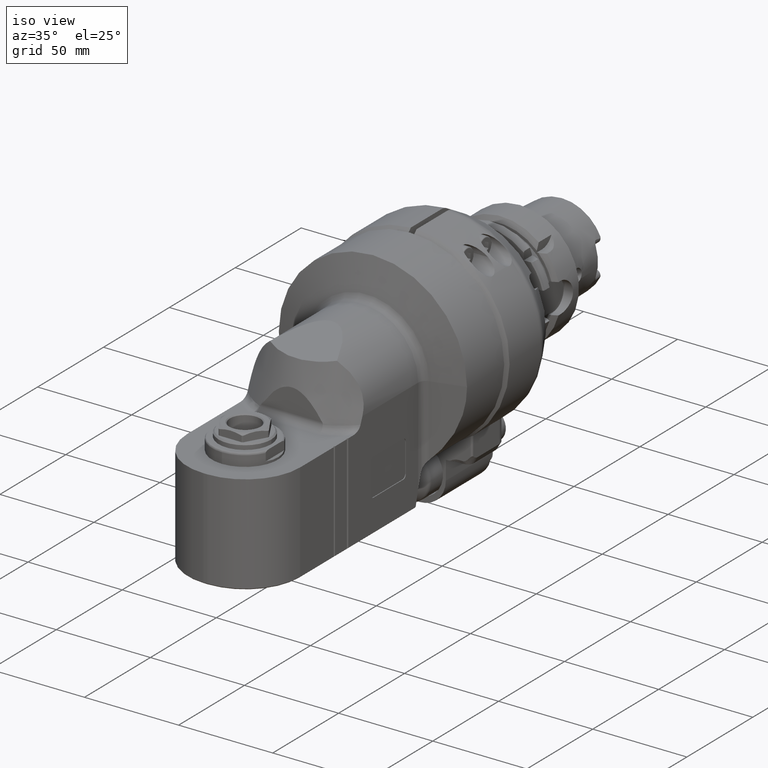
[diagram: clean part render]
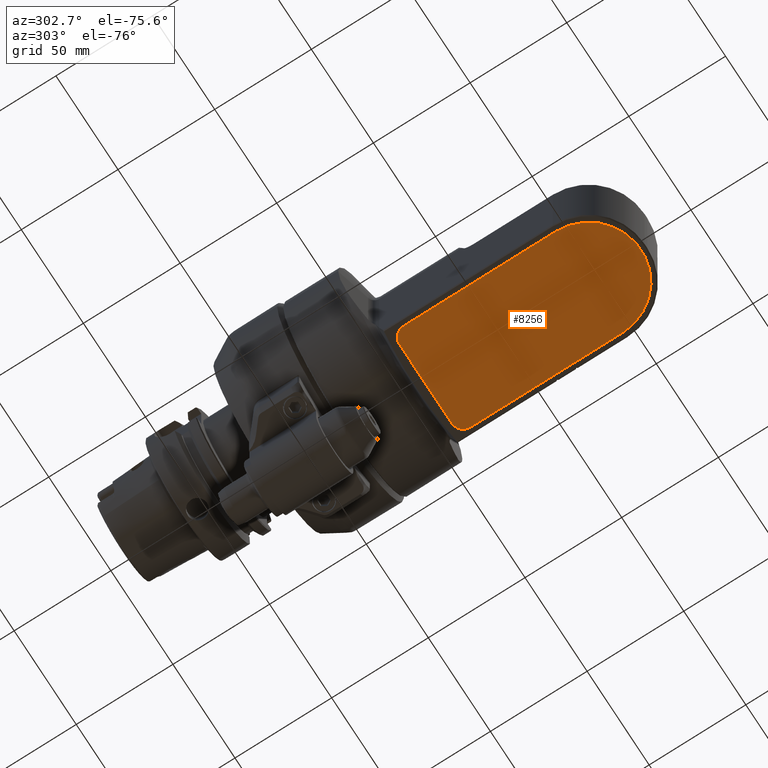
[diagram: tour spotlight — one face highlighted and labeled with its STEP entity id]
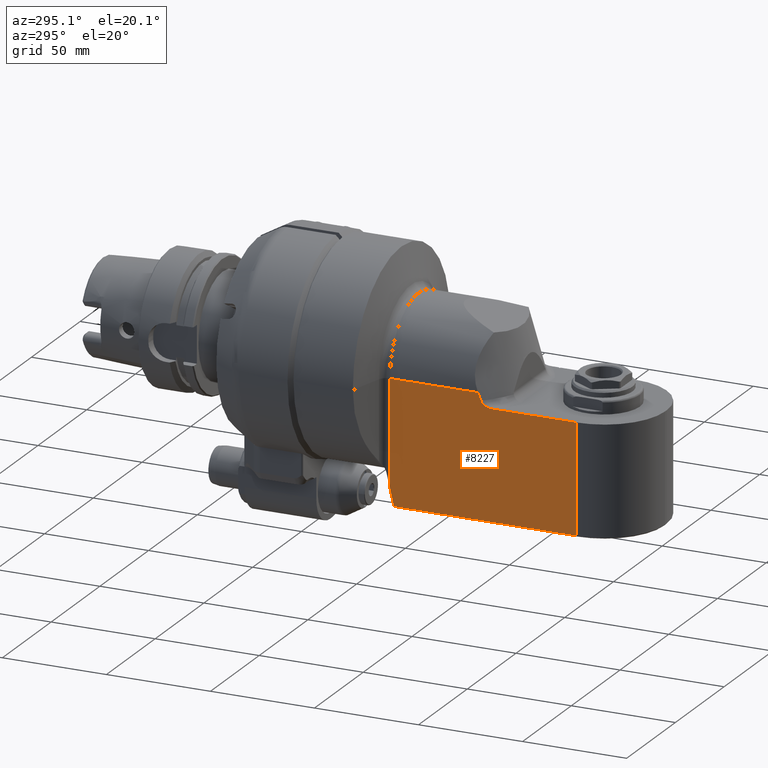
[diagram: tour spotlight — one face highlighted and labeled with its STEP entity id]
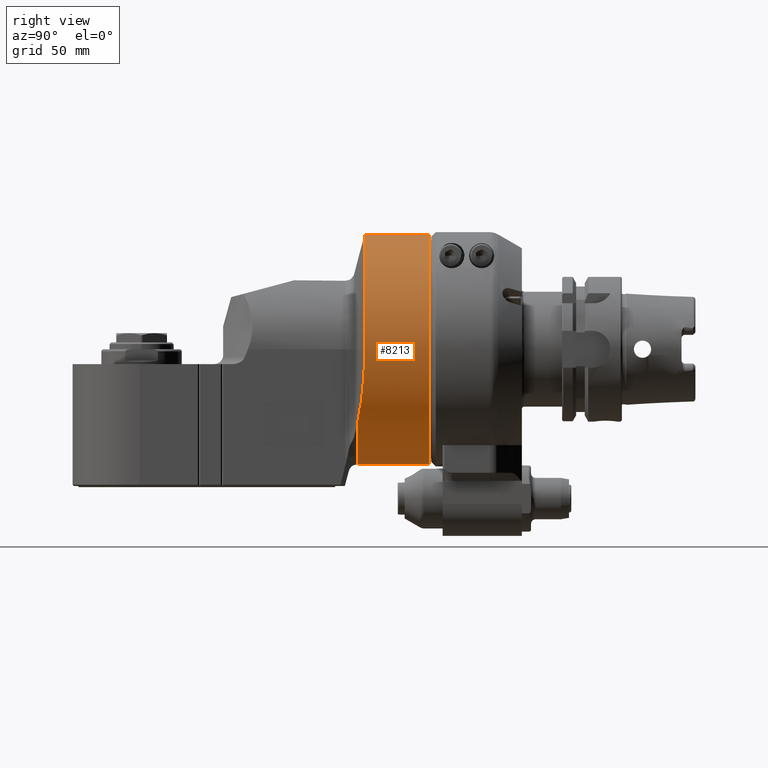
[diagram: tour spotlight — one face highlighted and labeled with its STEP entity id]
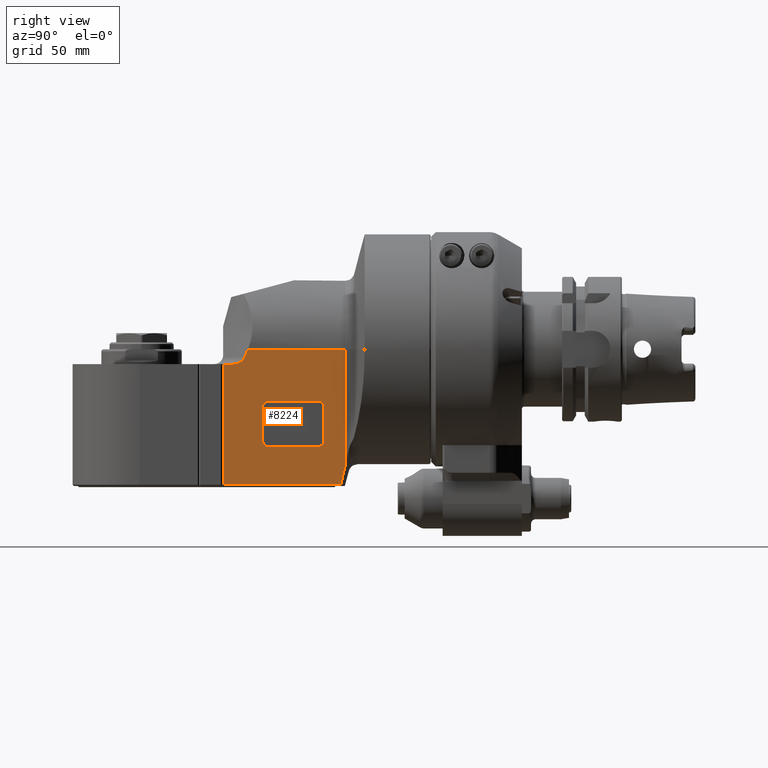
[diagram: tour spotlight — one face highlighted and labeled with its STEP entity id]
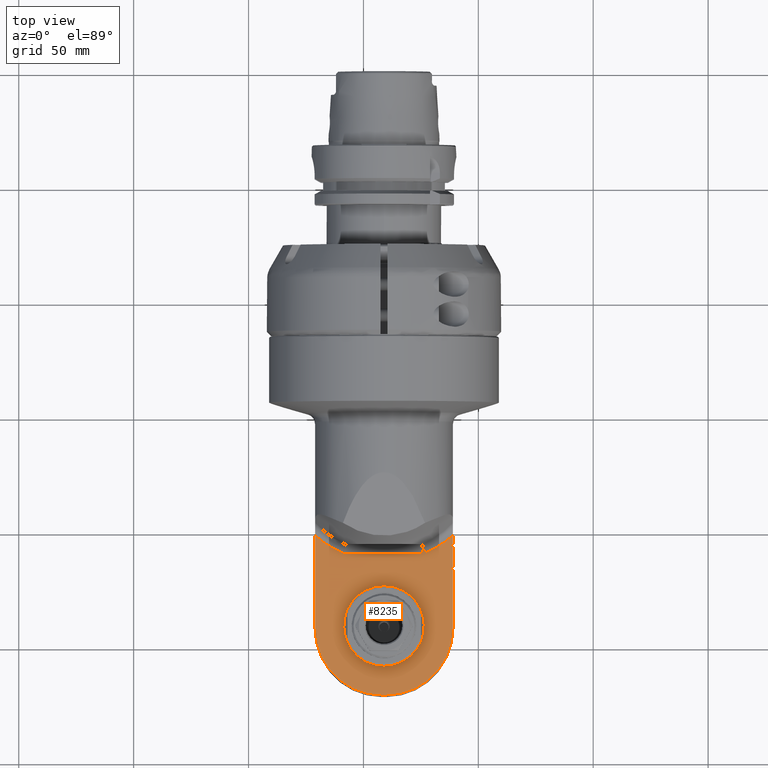
[diagram: tour spotlight — one face highlighted and labeled with its STEP entity id]
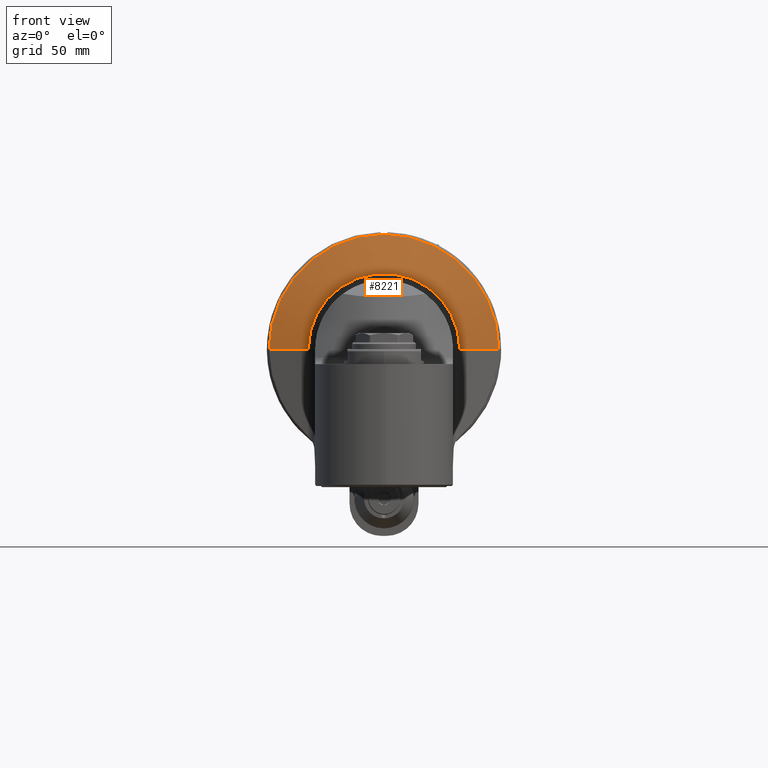
[diagram: tour spotlight — one face highlighted and labeled with its STEP entity id]
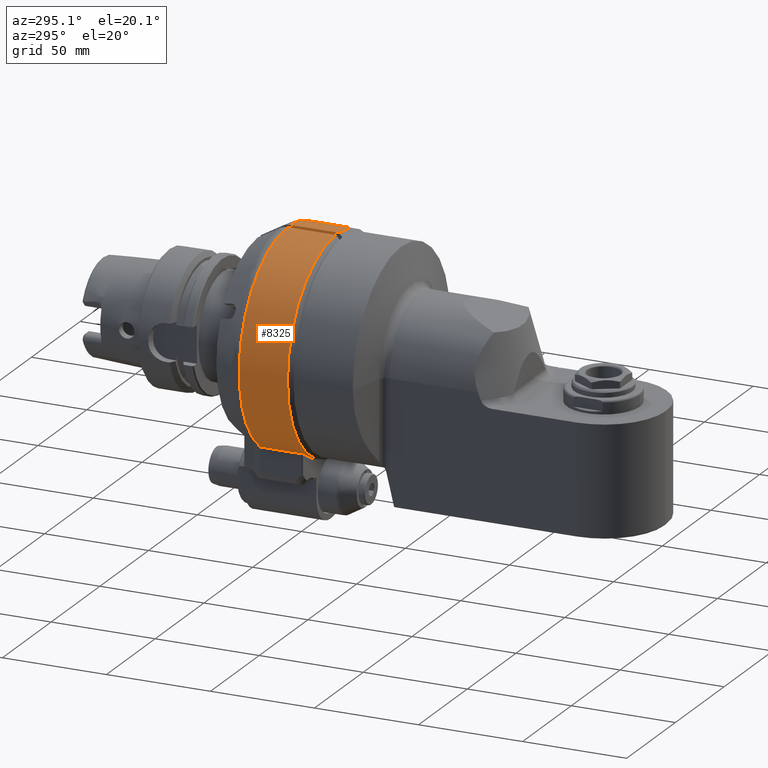
[diagram: tour spotlight — one face highlighted and labeled with its STEP entity id]
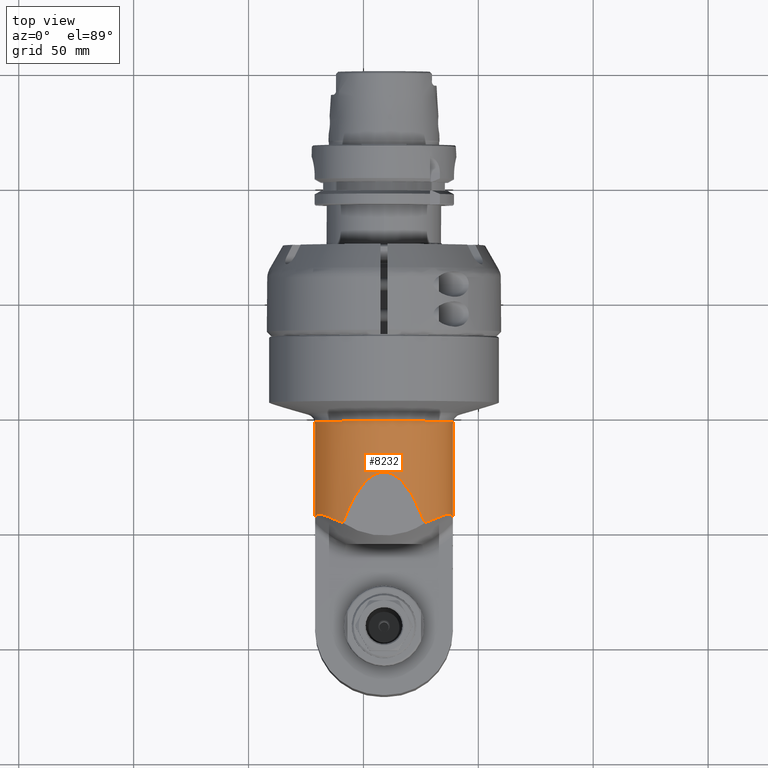
[diagram: tour spotlight — one face highlighted and labeled with its STEP entity id]
A machine part: a face-by-face anatomy tour. The part has 488 B-rep faces; the first image is the clean iso view, then the 8 largest visible faces are spotlighted one at a time (largest first), each with its STEP entity span.

Face 1 — auxiliary view, entity #8256. In plain terms, the highlighted planar face has unit normal (0, -0, 1).
Definition (entity closure, byte-faithful):
#415=PLANE('',#8845);
#771=FACE_OUTER_BOUND('',#1264,.T.);
#1264=EDGE_LOOP('',(#5746,#5747,#5748,#5749,#5750,#5751));
#1825=LINE('',#12572,#2392);
#1826=LINE('',#12575,#2393);
#1827=LINE('',#12576,#2394);
#2392=VECTOR('',#9946,78.5);
#2393=VECTOR('',#9949,78.5);
#2394=VECTOR('',#9950,42.);
#2951=CIRCLE('',#8844,6.);
#2952=CIRCLE('',#8846,6.);
#2953=CIRCLE('',#8847,27.);
#3443=VERTEX_POINT('',#12562);
#3444=VERTEX_POINT('',#12563);
#3445=VERTEX_POINT('',#12568);
#3446=VERTEX_POINT('',#12569);
#3447=VERTEX_POINT('',#12571);
#3448=VERTEX_POINT('',#12573);
#4343=EDGE_CURVE('',#3443,#3444,#2951,.T.);
#4346=EDGE_CURVE('',#3445,#3446,#2952,.T.);
#4347=EDGE_CURVE('',#3446,#3447,#1825,.T.);
#4348=EDGE_CURVE('',#3447,#3448,#2953,.T.);
#4349=EDGE_CURVE('',#3448,#3443,#1826,.T.);
#4350=EDGE_CURVE('',#3444,#3445,#1827,.T.);
#5746=ORIENTED_EDGE('',*,*,#4346,.T.);
#5747=ORIENTED_EDGE('',*,*,#4347,.T.);
#5748=ORIENTED_EDGE('',*,*,#4348,.T.);
#5749=ORIENTED_EDGE('',*,*,#4349,.T.);
#5750=ORIENTED_EDGE('',*,*,#4343,.T.);
#5751=ORIENTED_EDGE('',*,*,#4350,.T.);
#8256=ADVANCED_FACE('',(#771),#415,.F.);
#8844=AXIS2_PLACEMENT_3D('',#12564,#9938,#9939);
#8845=AXIS2_PLACEMENT_3D('',#12567,#9942,#9943);
#8846=AXIS2_PLACEMENT_3D('',#12570,#9944,#9945);
#8847=AXIS2_PLACEMENT_3D('',#12574,#9947,#9948);
#9938=DIRECTION('center_axis',(0.,1.,0.));
#9939=DIRECTION('ref_axis',(1.657933050107E-14,0.,-1.));
#9942=DIRECTION('center_axis',(0.,-1.,0.));
#9943=DIRECTION('ref_axis',(1.,0.,0.));
#9944=DIRECTION('center_axis',(0.,1.,0.));
#9945=DIRECTION('ref_axis',(-1.,0.,0.));
#9946=DIRECTION('',(1.,0.,0.));
#9947=DIRECTION('center_axis',(0.,1.,0.));
#9948=DIRECTION('ref_axis',(0.,0.,1.));
#9949=DIRECTION('',(-1.,0.,0.));
#9950=DIRECTION('',(0.,0.,1.));
#12562=CARTESIAN_POINT('',(52.,60.,-27.));
#12563=CARTESIAN_POINT('',(46.,60.,-21.));
#12564=CARTESIAN_POINT('Origin',(52.,60.,-21.));
#12567=CARTESIAN_POINT('Origin',(109.465346024,60.,0.));
#12568=CARTESIAN_POINT('',(46.,60.,21.));
#12569=CARTESIAN_POINT('',(52.,60.,27.));
#12570=CARTESIAN_POINT('Origin',(52.,60.,21.));
#12571=CARTESIAN_POINT('',(130.5,60.,27.));
#12572=CARTESIAN_POINT('',(52.,60.,27.));
#12573=CARTESIAN_POINT('',(130.5,60.,-27.));
#12574=CARTESIAN_POINT('Origin',(130.5,60.,0.));
#12575=CARTESIAN_POINT('',(130.5,60.,-27.));
#12576=CARTESIAN_POINT('',(46.,60.,-21.));

Face 2 — auxiliary view, entity #8227. In plain terms, the highlighted planar face has unit normal (-1, -0, 0).
Definition (entity closure, byte-faithful):
#42=(
BOUNDED_CURVE()
B_SPLINE_CURVE(2,(#12303,#12304,#12305),.UNSPECIFIED.,.F.,.F.)
B_SPLINE_CURVE_WITH_KNOTS((3,3),(31.6407018756525,33.7809985928058),
 .UNSPECIFIED.)
CURVE()
GEOMETRIC_REPRESENTATION_ITEM()
RATIONAL_B_SPLINE_CURVE((1.16255857113133,1.13492545272164,1.10281010088752))
REPRESENTATION_ITEM('')
);
#45=(
BOUNDED_CURVE()
B_SPLINE_CURVE(2,(#12349,#12350,#12351),.UNSPECIFIED.,.F.,.F.)
B_SPLINE_CURVE_WITH_KNOTS((3,3),(4.82902352379091,5.24528217645162),
 .UNSPECIFIED.)
CURVE()
GEOMETRIC_REPRESENTATION_ITEM()
RATIONAL_B_SPLINE_CURVE((1.03702782096055,1.03683296791277,1.03632939365101))
REPRESENTATION_ITEM('')
);
#172=B_SPLINE_CURVE_WITH_KNOTS('',3,(#12332,#12333,#12334,#12335,#12336,
#12337,#12338,#12339,#12340,#12341,#12342,#12343,#12344,#12345,#12346,#12347),
 .UNSPECIFIED.,.F.,.F.,(4,2,2,2,2,2,2,4),(1.49826923300153,1.53043280711697,
1.61136461859275,1.69229643006853,1.79134783866961,1.8903992472707,2.00104239030733,
2.11168553334395),.UNSPECIFIED.);
#398=PLANE('',#8799);
#742=FACE_OUTER_BOUND('',#1233,.T.);
#1233=EDGE_LOOP('',(#5593,#5594,#5595,#5596,#5597,#5598,#5599,#5600));
#1781=LINE('',#12321,#2348);
#1784=LINE('',#12326,#2351);
#1785=LINE('',#12328,#2352);
#1786=LINE('',#12330,#2353);
#1787=LINE('',#12352,#2354);
#2348=VECTOR('',#9806,10.);
#2351=VECTOR('',#9811,50.4922418065116);
#2352=VECTOR('',#9812,52.5);
#2353=VECTOR('',#9813,40.4589803375);
#2354=VECTOR('',#9814,42.40269030598);
#3378=VERTEX_POINT('',#12222);
#3398=VERTEX_POINT('',#12298);
#3399=VERTEX_POINT('',#12302);
#3402=VERTEX_POINT('',#12320);
#3404=VERTEX_POINT('',#12327);
#3405=VERTEX_POINT('',#12329);
#3406=VERTEX_POINT('',#12331);
#3407=VERTEX_POINT('',#12348);
#4268=EDGE_CURVE('',#3398,#3399,#42,.T.);
#4273=EDGE_CURVE('',#3402,#3398,#1781,.T.);
#4276=EDGE_CURVE('',#3399,#3378,#1784,.T.);
#4277=EDGE_CURVE('',#3404,#3402,#1785,.T.);
#4278=EDGE_CURVE('',#3405,#3404,#1786,.T.);
#4279=EDGE_CURVE('',#3406,#3405,#172,.T.);
#4280=EDGE_CURVE('',#3406,#3407,#45,.T.);
#4281=EDGE_CURVE('',#3378,#3407,#1787,.T.);
#5593=ORIENTED_EDGE('',*,*,#4276,.F.);
#5594=ORIENTED_EDGE('',*,*,#4268,.F.);
#5595=ORIENTED_EDGE('',*,*,#4273,.F.);
#5596=ORIENTED_EDGE('',*,*,#4277,.F.);
#5597=ORIENTED_EDGE('',*,*,#4278,.F.);
#5598=ORIENTED_EDGE('',*,*,#4279,.F.);
#5599=ORIENTED_EDGE('',*,*,#4280,.T.);
#5600=ORIENTED_EDGE('',*,*,#4281,.F.);
#8227=ADVANCED_FACE('',(#742),#398,.T.);
#8799=AXIS2_PLACEMENT_3D('',#12325,#9809,#9810);
#9806=DIRECTION('',(-1.,0.,0.));
#9809=DIRECTION('center_axis',(0.,0.,-1.));
#9810=DIRECTION('ref_axis',(0.,1.,0.));
#9811=DIRECTION('',(3.98864110264687E-7,-0.999999999999368,-1.05111995132497E-6));
#9812=DIRECTION('',(0.,1.,0.));
#9813=DIRECTION('',(1.,0.,0.));
#9814=DIRECTION('',(0.999999999999999,-1.247353217578E-8,3.210927516568E-8));
#12222=CARTESIAN_POINT('',(41.33974596216,0.,-30.));
#12298=CARTESIAN_POINT('',(43.3378623998883,59.0000000009117,-29.9999999996262));
#12302=CARTESIAN_POINT('',(41.3397291357277,50.4921914898967,-29.9999516932181));
#12303=CARTESIAN_POINT('Ctrl Pts',(43.3378623997196,59.0000000009519,-30.));
#12304=CARTESIAN_POINT('Ctrl Pts',(42.2611839383172,54.4921631690508,-30.));
#12305=CARTESIAN_POINT('Ctrl Pts',(41.3397627123332,50.4921889708181,-30.));
#12320=CARTESIAN_POINT('',(131.,59.,-30.));
#12321=CARTESIAN_POINT('',(-4.3000012,59.,-30.));
#12325=CARTESIAN_POINT('Origin',(37.,65.11439776565,-30.));
#12326=CARTESIAN_POINT('',(41.33972582261,50.49224180648,-29.9999469266));
#12327=CARTESIAN_POINT('',(131.,6.5,-30.));
#12328=CARTESIAN_POINT('',(131.,6.5,-30.));
#12329=CARTESIAN_POINT('',(90.5410196625,6.5,-30.));
#12330=CARTESIAN_POINT('',(90.5410196625,6.5,-30.));
#12331=CARTESIAN_POINT('',(85.1459571655307,3.53527614953475,-30.0000000053595));
#12332=CARTESIAN_POINT('Ctrl Pts',(85.1459571704853,3.53527614759443,-30.));
#12333=CARTESIAN_POINT('Ctrl Pts',(85.1876025426943,3.64161822527459,-30.));
#12334=CARTESIAN_POINT('Ctrl Pts',(85.2344226636569,3.74351917789133,-30.));
#12335=CARTESIAN_POINT('Ctrl Pts',(85.4077499739765,4.07829529141558,-30.));
#12336=CARTESIAN_POINT('Ctrl Pts',(85.5735276935126,4.32229786159449,-30.));
#12337=CARTESIAN_POINT('Ctrl Pts',(85.9564630788708,4.76780407145822,-30.));
#12338=CARTESIAN_POINT('Ctrl Pts',(86.1731456772512,4.96971583580246,-30.));
#12339=CARTESIAN_POINT('Ctrl Pts',(86.6421717593313,5.34381130191266,-30.));
#12340=CARTESIAN_POINT('Ctrl Pts',(86.9451045609874,5.54170426895446,-30.));
#12341=CARTESIAN_POINT('Ctrl Pts',(87.5829941314428,5.87849715763416,-30.));
#12342=CARTESIAN_POINT('Ctrl Pts',(87.9177674787342,6.01774436719797,-30.));
#12343=CARTESIAN_POINT('Ctrl Pts',(88.5800864094978,6.24114813823444,-30.));
#12344=CARTESIAN_POINT('Ctrl Pts',(88.9724371130579,6.34051745639951,-30.));
#12345=CARTESIAN_POINT('Ctrl Pts',(89.7685005411863,6.4699308390669,-30.));
#12346=CARTESIAN_POINT('Ctrl Pts',(90.1722091857083,6.5,-30.));
#12347=CARTESIAN_POINT('Ctrl Pts',(90.5410196624969,6.5,-30.));
#12348=CARTESIAN_POINT('',(83.7424289035937,-4.81740687977382E-7,-29.9999995461602));
#12349=CARTESIAN_POINT('Ctrl Pts',(85.1459571704878,3.53527614760182,-30.));
#12350=CARTESIAN_POINT('Ctrl Pts',(84.4360189058194,1.72243828543159,-30.));
#12351=CARTESIAN_POINT('Ctrl Pts',(83.7424288902771,-4.76378302145298E-7,
-30.));
#12352=CARTESIAN_POINT('',(41.33974596216,0.,-30.));

Face 3 — right view, entity #8213. In plain terms, the highlighted cylindrical surface (bore or boss wall) has radius 50 mm, axis along (0, -1, -0).
Definition (entity closure, byte-faithful):
#728=FACE_OUTER_BOUND('',#1216,.T.);
#1216=EDGE_LOOP('',(#5511,#5512,#5513,#5514,#5515,#5516,#5517,#5518,#5519));
#1764=LINE('',#12178,#2331);
#2331=VECTOR('',#9719,50.);
#2898=ELLIPSE('',#8760,51.7638090205038,50.);
#2899=ELLIPSE('',#8762,51.7638090205038,50.);
#2912=CIRCLE('',#8759,50.);
#2913=CIRCLE('',#8761,50.);
#2914=CIRCLE('',#8763,50.);
#2915=CIRCLE('',#8764,50.);
#2916=CIRCLE('',#8765,50.);
#3358=VERTEX_POINT('',#12167);
#3359=VERTEX_POINT('',#12168);
#3360=VERTEX_POINT('',#12170);
#3361=VERTEX_POINT('',#12172);
#3362=VERTEX_POINT('',#12174);
#3363=VERTEX_POINT('',#12177);
#3364=VERTEX_POINT('',#12179);
#4219=EDGE_CURVE('',#3358,#3359,#2912,.T.);
#4220=EDGE_CURVE('',#3360,#3358,#2898,.T.);
#4221=EDGE_CURVE('',#3361,#3360,#2913,.T.);
#4222=EDGE_CURVE('',#3362,#3361,#2899,.T.);
#4223=EDGE_CURVE('',#3359,#3362,#2914,.T.);
#4224=EDGE_CURVE('',#3359,#3363,#1764,.T.);
#4225=EDGE_CURVE('',#3364,#3363,#2915,.T.);
#4226=EDGE_CURVE('',#3363,#3364,#2916,.T.);
#5511=ORIENTED_EDGE('',*,*,#4219,.F.);
#5512=ORIENTED_EDGE('',*,*,#4220,.F.);
#5513=ORIENTED_EDGE('',*,*,#4221,.F.);
#5514=ORIENTED_EDGE('',*,*,#4222,.F.);
#5515=ORIENTED_EDGE('',*,*,#4223,.F.);
#5516=ORIENTED_EDGE('',*,*,#4224,.T.);
#5517=ORIENTED_EDGE('',*,*,#4225,.F.);
#5518=ORIENTED_EDGE('',*,*,#4226,.F.);
#5519=ORIENTED_EDGE('',*,*,#4224,.F.);
#8095=CYLINDRICAL_SURFACE('',#8758,50.);
#8213=ADVANCED_FACE('',(#728),#8095,.T.);
#8758=AXIS2_PLACEMENT_3D('',#12166,#9707,#9708);
#8759=AXIS2_PLACEMENT_3D('',#12169,#9709,#9710);
#8760=AXIS2_PLACEMENT_3D('',#12171,#9711,#9712);
#8761=AXIS2_PLACEMENT_3D('',#12173,#9713,#9714);
#8762=AXIS2_PLACEMENT_3D('',#12175,#9715,#9716);
#8763=AXIS2_PLACEMENT_3D('',#12176,#9717,#9718);
#8764=AXIS2_PLACEMENT_3D('',#12180,#9720,#9721);
#8765=AXIS2_PLACEMENT_3D('',#12181,#9722,#9723);
#9707=DIRECTION('center_axis',(1.,0.,0.));
#9708=DIRECTION('ref_axis',(0.,-1.,0.));
#9709=DIRECTION('center_axis',(1.,0.,0.));
#9710=DIRECTION('ref_axis',(0.,0.632401211988616,-0.77464101819832));
#9711=DIRECTION('center_axis',(0.965925826289076,0.,-0.258819045102493));
#9712=DIRECTION('ref_axis',(-0.258819045102493,0.,-0.965925826289076));
#9713=DIRECTION('center_axis',(1.,0.,0.));
#9714=DIRECTION('ref_axis',(0.,-4.244886712573E-14,1.));
#9715=DIRECTION('center_axis',(0.965925826289076,0.,0.258819045102493));
#9716=DIRECTION('ref_axis',(0.258819045102493,0.,-0.965925826289076));
#9717=DIRECTION('center_axis',(1.,0.,0.));
#9718=DIRECTION('ref_axis',(0.,0.632401211988616,-0.77464101819832));
#9719=DIRECTION('',(-1.,0.,0.));
#9720=DIRECTION('center_axis',(-1.,0.,0.));
#9721=DIRECTION('ref_axis',(0.,-1.,0.));
#9722=DIRECTION('center_axis',(-1.,0.,0.));
#9723=DIRECTION('ref_axis',(0.,-1.,0.));
#12166=CARTESIAN_POINT('Origin',(21.96534601033,0.,0.));
#12167=CARTESIAN_POINT('',(35.93069202066,31.62006059943,-38.73205090992));
#12168=CARTESIAN_POINT('',(35.9306920206643,50.,6.12323399573677E-15));
#12169=CARTESIAN_POINT('Origin',(35.93069202066,0.,0.));
#12170=CARTESIAN_POINT('',(32.91145416162,0.,-50.));
#12171=CARTESIAN_POINT('Origin',(46.3089137831769,0.,0.));
#12172=CARTESIAN_POINT('',(32.91145416162,-2.122443356287E-12,50.));
#12173=CARTESIAN_POINT('Origin',(32.91145416162,0.,0.));
#12174=CARTESIAN_POINT('',(35.93069202066,31.62006059943,38.73205090992));
#12175=CARTESIAN_POINT('Origin',(46.3089137831686,0.,0.));
#12176=CARTESIAN_POINT('Origin',(35.93069202066,0.,0.));
#12177=CARTESIAN_POINT('',(4.7,50.,0.));
#12178=CARTESIAN_POINT('',(21.96534601033,50.,6.12323399573677E-15));
#12179=CARTESIAN_POINT('',(4.7000000000018,-6.12323399573662E-15,49.9999999999982));
#12180=CARTESIAN_POINT('Origin',(4.7,0.,0.));
#12181=CARTESIAN_POINT('Origin',(4.7,0.,0.));

Face 4 — right view, entity #8224. In plain terms, the highlighted planar face has unit normal (1, 0, -0).
Definition (entity closure, byte-faithful):
#39=(
BOUNDED_CURVE()
B_SPLINE_CURVE(2,(#12251,#12252,#12253),.UNSPECIFIED.,.F.,.F.)
B_SPLINE_CURVE_WITH_KNOTS((3,3),(3.88731172129268,4.30357037737945),
 .UNSPECIFIED.)
CURVE()
GEOMETRIC_REPRESENTATION_ITEM()
RATIONAL_B_SPLINE_CURVE((1.03632939364827,1.03683296791404,1.03702782096075))
REPRESENTATION_ITEM('')
);
#40=(
BOUNDED_CURVE()
B_SPLINE_CURVE(2,(#12277,#12278,#12279),.UNSPECIFIED.,.F.,.F.)
B_SPLINE_CURVE_WITH_KNOTS((3,3),(-20.2216502627518,-18.52143439675),
 .UNSPECIFIED.)
CURVE()
GEOMETRIC_REPRESENTATION_ITEM()
RATIONAL_B_SPLINE_CURVE((1.08247320241685,1.10694018668164,1.12670982661861))
REPRESENTATION_ITEM('')
);
#170=B_SPLINE_CURVE_WITH_KNOTS('',3,(#12255,#12256,#12257,#12258,#12259,
#12260,#12261,#12262,#12263,#12264,#12265,#12266,#12267,#12268,#12269,#12270),
 .UNSPECIFIED.,.F.,.F.,(4,2,2,2,2,2,2,4),(-1.29904819683392,-1.26688462573097,
-1.18595281425532,-1.10502100277968,-1.00596959417875,-0.906918185577824,
-0.796275042541381,-0.685631899504938),.UNSPECIFIED.);
#335=FACE_BOUND('',#1230,.T.);
#396=PLANE('',#8791);
#739=FACE_OUTER_BOUND('',#1229,.T.);
#1229=EDGE_LOOP('',(#5565,#5566,#5567,#5568,#5569,#5570,#5571,#5572));
#1230=EDGE_LOOP('',(#5573,#5574,#5575,#5576,#5577,#5578,#5579,#5580));
#1771=LINE('',#12229,#2338);
#1773=LINE('',#12249,#2340);
#1774=LINE('',#12272,#2341);
#1775=LINE('',#12274,#2342);
#1776=LINE('',#12276,#2343);
#1777=LINE('',#12284,#2344);
#1778=LINE('',#12288,#2345);
#1779=LINE('',#12292,#2346);
#1780=LINE('',#12295,#2347);
#2338=VECTOR('',#9780,50.4922186075015);
#2340=VECTOR('',#9784,42.40269030669);
#2341=VECTOR('',#9785,3.958980337505);
#2342=VECTOR('',#9786,52.5);
#2343=VECTOR('',#9787,10.);
#2344=VECTOR('',#9790,15.5);
#2345=VECTOR('',#9793,22.5);
#2346=VECTOR('',#9796,15.5);
#2347=VECTOR('',#9799,22.5);
#2932=CIRCLE('',#8792,2.);
#2933=CIRCLE('',#8793,2.);
#2934=CIRCLE('',#8794,2.);
#2935=CIRCLE('',#8795,2.);
#3379=VERTEX_POINT('',#12224);
#3380=VERTEX_POINT('',#12228);
#3383=VERTEX_POINT('',#12248);
#3384=VERTEX_POINT('',#12250);
#3385=VERTEX_POINT('',#12254);
#3386=VERTEX_POINT('',#12271);
#3387=VERTEX_POINT('',#12273);
#3388=VERTEX_POINT('',#12275);
#3389=VERTEX_POINT('',#12280);
#3390=VERTEX_POINT('',#12281);
#3391=VERTEX_POINT('',#12283);
#3392=VERTEX_POINT('',#12285);
#3393=VERTEX_POINT('',#12287);
#3394=VERTEX_POINT('',#12289);
#3395=VERTEX_POINT('',#12291);
#3396=VERTEX_POINT('',#12293);
#4248=EDGE_CURVE('',#3379,#3380,#1771,.T.);
#4252=EDGE_CURVE('',#3383,#3379,#1773,.T.);
#4253=EDGE_CURVE('',#3383,#3384,#39,.T.);
#4254=EDGE_CURVE('',#3384,#3385,#170,.T.);
#4255=EDGE_CURVE('',#3386,#3385,#1774,.T.);
#4256=EDGE_CURVE('',#3387,#3386,#1775,.T.);
#4257=EDGE_CURVE('',#3388,#3387,#1776,.T.);
#4258=EDGE_CURVE('',#3380,#3388,#40,.T.);
#4259=EDGE_CURVE('',#3389,#3390,#2932,.T.);
#4260=EDGE_CURVE('',#3390,#3391,#1777,.T.);
#4261=EDGE_CURVE('',#3391,#3392,#2933,.T.);
#4262=EDGE_CURVE('',#3392,#3393,#1778,.T.);
#4263=EDGE_CURVE('',#3393,#3394,#2934,.T.);
#4264=EDGE_CURVE('',#3394,#3395,#1779,.T.);
#4265=EDGE_CURVE('',#3395,#3396,#2935,.T.);
#4266=EDGE_CURVE('',#3396,#3389,#1780,.T.);
#5565=ORIENTED_EDGE('',*,*,#4248,.F.);
#5566=ORIENTED_EDGE('',*,*,#4252,.F.);
#5567=ORIENTED_EDGE('',*,*,#4253,.T.);
#5568=ORIENTED_EDGE('',*,*,#4254,.T.);
#5569=ORIENTED_EDGE('',*,*,#4255,.F.);
#5570=ORIENTED_EDGE('',*,*,#4256,.F.);
#5571=ORIENTED_EDGE('',*,*,#4257,.F.);
#5572=ORIENTED_EDGE('',*,*,#4258,.F.);
#5573=ORIENTED_EDGE('',*,*,#4259,.T.);
#5574=ORIENTED_EDGE('',*,*,#4260,.T.);
#5575=ORIENTED_EDGE('',*,*,#4261,.T.);
#5576=ORIENTED_EDGE('',*,*,#4262,.T.);
#5577=ORIENTED_EDGE('',*,*,#4263,.T.);
#5578=ORIENTED_EDGE('',*,*,#4264,.T.);
#5579=ORIENTED_EDGE('',*,*,#4265,.T.);
#5580=ORIENTED_EDGE('',*,*,#4266,.T.);
#8224=ADVANCED_FACE('',(#739,#335),#396,.T.);
#8791=AXIS2_PLACEMENT_3D('',#12247,#9782,#9783);
#8792=AXIS2_PLACEMENT_3D('',#12282,#9788,#9789);
#8793=AXIS2_PLACEMENT_3D('',#12286,#9791,#9792);
#8794=AXIS2_PLACEMENT_3D('',#12290,#9794,#9795);
#8795=AXIS2_PLACEMENT_3D('',#12294,#9797,#9798);
#9780=DIRECTION('',(1.58048043767995E-6,0.99999999999787,-1.32724426305596E-6));
#9782=DIRECTION('center_axis',(0.,0.,1.));
#9783=DIRECTION('ref_axis',(0.,-1.,0.));
#9784=DIRECTION('',(-0.999999999999999,1.247476790636E-8,3.211245698813E-8));
#9785=DIRECTION('',(-1.,0.,0.));
#9786=DIRECTION('',(0.,-1.,0.));
#9787=DIRECTION('',(1.,0.,0.));
#9788=DIRECTION('center_axis',(0.,0.,-1.));
#9789=DIRECTION('ref_axis',(0.,-1.,0.));
#9790=DIRECTION('',(0.,1.,0.));
#9791=DIRECTION('center_axis',(0.,0.,-1.));
#9792=DIRECTION('ref_axis',(-1.,0.,0.));
#9793=DIRECTION('',(1.,0.,0.));
#9794=DIRECTION('center_axis',(0.,0.,-1.));
#9795=DIRECTION('ref_axis',(0.,1.,0.));
#9796=DIRECTION('',(0.,-1.,0.));
#9797=DIRECTION('center_axis',(0.,0.,-1.));
#9798=DIRECTION('ref_axis',(1.,0.,0.));
#9799=DIRECTION('',(-1.,0.,0.));
#12224=CARTESIAN_POINT('',(41.33974596216,-3.215626318717E-14,30.));
#12228=CARTESIAN_POINT('',(41.3398197361523,50.492219995972,29.9999405506243));
#12229=CARTESIAN_POINT('',(41.33974596216,0.,30.));
#12247=CARTESIAN_POINT('Origin',(37.,0.,30.));
#12248=CARTESIAN_POINT('',(83.742428903576,-4.81788432546018E-7,29.9999995461167));
#12249=CARTESIAN_POINT('',(83.74243626884,-5.289637251381E-7,29.99999863835));
#12250=CARTESIAN_POINT('',(85.1459571817444,3.53527617765083,30.0000000004781));
#12251=CARTESIAN_POINT('Ctrl Pts',(83.742428890258,-4.76425516622418E-7,
30.));
#12252=CARTESIAN_POINT('Ctrl Pts',(84.4360189115231,1.7224382995954,30.));
#12253=CARTESIAN_POINT('Ctrl Pts',(85.1459571821875,3.53527617747735,30.));
#12254=CARTESIAN_POINT('',(90.54101966249,6.5,30.));
#12255=CARTESIAN_POINT('Ctrl Pts',(85.1459571821879,3.53527617747715,30.));
#12256=CARTESIAN_POINT('Ctrl Pts',(85.1876025514518,3.64161824437068,30.));
#12257=CARTESIAN_POINT('Ctrl Pts',(85.2344226682737,3.74351918680851,30.));
#12258=CARTESIAN_POINT('Ctrl Pts',(85.4077499739765,4.07829529141558,30.));
#12259=CARTESIAN_POINT('Ctrl Pts',(85.5735276935126,4.32229786159449,30.));
#12260=CARTESIAN_POINT('Ctrl Pts',(85.9564630788708,4.76780407145822,30.));
#12261=CARTESIAN_POINT('Ctrl Pts',(86.1731456772512,4.96971583580245,30.));
#12262=CARTESIAN_POINT('Ctrl Pts',(86.6421717593313,5.34381130191266,30.));
#12263=CARTESIAN_POINT('Ctrl Pts',(86.9451045609874,5.54170426895446,30.));
#12264=CARTESIAN_POINT('Ctrl Pts',(87.5829941314428,5.87849715763416,30.));
#12265=CARTESIAN_POINT('Ctrl Pts',(87.9177674787342,6.01774436719797,30.));
#12266=CARTESIAN_POINT('Ctrl Pts',(88.5800864094978,6.24114813823443,30.));
#12267=CARTESIAN_POINT('Ctrl Pts',(88.9724371130579,6.34051745639951,30.));
#12268=CARTESIAN_POINT('Ctrl Pts',(89.7685005411862,6.4699308390669,30.));
#12269=CARTESIAN_POINT('Ctrl Pts',(90.1722091857083,6.5,30.));
#12270=CARTESIAN_POINT('Ctrl Pts',(90.5410196624969,6.5,30.));
#12271=CARTESIAN_POINT('',(94.5,6.5,30.));
#12272=CARTESIAN_POINT('',(94.5,6.5,30.));
#12273=CARTESIAN_POINT('',(94.5,59.,30.));
#12274=CARTESIAN_POINT('',(94.5,59.,30.));
#12275=CARTESIAN_POINT('',(43.3378623998883,59.0000000009116,29.9999999996263));
#12276=CARTESIAN_POINT('',(-4.3000012,59.,30.));
#12277=CARTESIAN_POINT('Ctrl Pts',(41.3397723724811,50.4922309064034,30.));
#12278=CARTESIAN_POINT('Ctrl Pts',(42.2611895560662,54.4921866894395,30.));
#12279=CARTESIAN_POINT('Ctrl Pts',(43.3378623997195,59.0000000009519,30.));
#12280=CARTESIAN_POINT('',(52.75,22.75,30.));
#12281=CARTESIAN_POINT('',(50.75,24.75,30.));
#12282=CARTESIAN_POINT('Origin',(52.75,24.75,30.));
#12283=CARTESIAN_POINT('',(50.75,40.25,30.));
#12284=CARTESIAN_POINT('',(50.75,24.75,30.));
#12285=CARTESIAN_POINT('',(52.75,42.25,30.));
#12286=CARTESIAN_POINT('Origin',(52.75,40.25,30.));
#12287=CARTESIAN_POINT('',(75.25,42.25,30.));
#12288=CARTESIAN_POINT('',(52.75,42.25,30.));
#12289=CARTESIAN_POINT('',(77.25,40.25,30.));
#12290=CARTESIAN_POINT('Origin',(75.25,40.25,30.));
#12291=CARTESIAN_POINT('',(77.25,24.75,30.));
#12292=CARTESIAN_POINT('',(77.25,40.25,30.));
#12293=CARTESIAN_POINT('',(75.25,22.75,30.));
#12294=CARTESIAN_POINT('Origin',(75.25,24.75,30.));
#12295=CARTESIAN_POINT('',(75.25,22.75,30.));

Face 5 — top view, entity #8235. In plain terms, the highlighted planar face has unit normal (-0, 0, -1).
Definition (entity closure, byte-faithful):
#336=FACE_BOUND('',#1242,.T.);
#401=PLANE('',#8812);
#750=FACE_OUTER_BOUND('',#1241,.T.);
#1241=EDGE_LOOP('',(#5641,#5642,#5643,#5644,#5645,#5646,#5647,#5648,#5649,
#5650,#5651,#5652,#5653,#5654));
#1242=EDGE_LOOP('',(#5655));
#1774=LINE('',#12272,#2341);
#1786=LINE('',#12330,#2353);
#1789=LINE('',#12457,#2356);
#1790=LINE('',#12462,#2357);
#1791=LINE('',#12466,#2358);
#1792=LINE('',#12468,#2359);
#1793=LINE('',#12470,#2360);
#1794=LINE('',#12472,#2361);
#1795=LINE('',#12474,#2362);
#1796=LINE('',#12475,#2363);
#2341=VECTOR('',#9785,3.958980337505);
#2353=VECTOR('',#9813,40.4589803375);
#2356=VECTOR('',#9842,34.79942528261);
#2357=VECTOR('',#9847,2.);
#2358=VECTOR('',#9850,25.5);
#2359=VECTOR('',#9851,0.707106781186402);
#2360=VECTOR('',#9852,0.707106781186402);
#2361=VECTOR('',#9853,9.);
#2362=VECTOR('',#9854,0.707106781186402);
#2363=VECTOR('',#9855,0.707106781186353);
#2939=CIRCLE('',#8811,45.);
#2940=CIRCLE('',#8813,45.);
#2941=CIRCLE('',#8814,29.);
#2942=CIRCLE('',#8815,29.);
#2943=CIRCLE('',#8816,17.5);
#3385=VERTEX_POINT('',#12254);
#3386=VERTEX_POINT('',#12271);
#3404=VERTEX_POINT('',#12327);
#3405=VERTEX_POINT('',#12329);
#3415=VERTEX_POINT('',#12441);
#3416=VERTEX_POINT('',#12456);
#3417=VERTEX_POINT('',#12459);
#3418=VERTEX_POINT('',#12461);
#3419=VERTEX_POINT('',#12463);
#3420=VERTEX_POINT('',#12465);
#3421=VERTEX_POINT('',#12467);
#3422=VERTEX_POINT('',#12469);
#3423=VERTEX_POINT('',#12471);
#3424=VERTEX_POINT('',#12473);
#3425=VERTEX_POINT('',#12476);
#4255=EDGE_CURVE('',#3386,#3385,#1774,.T.);
#4278=EDGE_CURVE('',#3405,#3404,#1786,.T.);
#4296=EDGE_CURVE('',#3385,#3415,#2939,.T.);
#4297=EDGE_CURVE('',#3416,#3415,#1789,.T.);
#4298=EDGE_CURVE('',#3416,#3405,#2940,.T.);
#4299=EDGE_CURVE('',#3404,#3417,#2941,.T.);
#4300=EDGE_CURVE('',#3417,#3418,#1790,.T.);
#4301=EDGE_CURVE('',#3418,#3419,#2942,.T.);
#4302=EDGE_CURVE('',#3419,#3420,#1791,.T.);
#4303=EDGE_CURVE('',#3420,#3421,#1792,.T.);
#4304=EDGE_CURVE('',#3421,#3422,#1793,.T.);
#4305=EDGE_CURVE('',#3422,#3423,#1794,.T.);
#4306=EDGE_CURVE('',#3423,#3424,#1795,.T.);
#4307=EDGE_CURVE('',#3424,#3386,#1796,.T.);
#4308=EDGE_CURVE('',#3425,#3425,#2943,.T.);
#5641=ORIENTED_EDGE('',*,*,#4297,.F.);
#5642=ORIENTED_EDGE('',*,*,#4298,.T.);
#5643=ORIENTED_EDGE('',*,*,#4278,.T.);
#5644=ORIENTED_EDGE('',*,*,#4299,.T.);
#5645=ORIENTED_EDGE('',*,*,#4300,.T.);
#5646=ORIENTED_EDGE('',*,*,#4301,.T.);
#5647=ORIENTED_EDGE('',*,*,#4302,.T.);
#5648=ORIENTED_EDGE('',*,*,#4303,.T.);
#5649=ORIENTED_EDGE('',*,*,#4304,.T.);
#5650=ORIENTED_EDGE('',*,*,#4305,.T.);
#5651=ORIENTED_EDGE('',*,*,#4306,.T.);
#5652=ORIENTED_EDGE('',*,*,#4307,.T.);
#5653=ORIENTED_EDGE('',*,*,#4255,.T.);
#5654=ORIENTED_EDGE('',*,*,#4296,.T.);
#5655=ORIENTED_EDGE('',*,*,#4308,.T.);
#8235=ADVANCED_FACE('',(#750,#336),#401,.F.);
#8811=AXIS2_PLACEMENT_3D('',#12454,#9838,#9839);
#8812=AXIS2_PLACEMENT_3D('',#12455,#9840,#9841);
#8813=AXIS2_PLACEMENT_3D('',#12458,#9843,#9844);
#8814=AXIS2_PLACEMENT_3D('',#12460,#9845,#9846);
#8815=AXIS2_PLACEMENT_3D('',#12464,#9848,#9849);
#8816=AXIS2_PLACEMENT_3D('',#12477,#9856,#9857);
#9785=DIRECTION('',(-1.,0.,0.));
#9813=DIRECTION('',(1.,0.,0.));
#9838=DIRECTION('center_axis',(0.,1.,0.));
#9839=DIRECTION('ref_axis',(0.7453559924999,0.,0.6666666666667));
#9840=DIRECTION('center_axis',(0.,1.,0.));
#9841=DIRECTION('ref_axis',(1.,0.,0.));
#9842=DIRECTION('',(0.,0.,1.));
#9843=DIRECTION('center_axis',(0.,1.,0.));
#9844=DIRECTION('ref_axis',(0.922222222222218,0.,-0.386660280917907));
#9845=DIRECTION('center_axis',(0.,-1.,0.));
#9846=DIRECTION('ref_axis',(0.,0.,-1.));
#9847=DIRECTION('',(0.,0.,1.));
#9848=DIRECTION('center_axis',(0.,-1.,0.));
#9849=DIRECTION('ref_axis',(1.,0.,0.));
#9850=DIRECTION('',(-1.,0.,0.));
#9851=DIRECTION('',(-0.707106781186498,0.,-0.707106781186598));
#9852=DIRECTION('',(-0.707106781186598,0.,0.707106781186498));
#9853=DIRECTION('',(-1.,0.,0.));
#9854=DIRECTION('',(-0.707106781186598,0.,-0.707106781186498));
#9855=DIRECTION('',(-0.707106781186548,0.,0.707106781186548));
#9856=DIRECTION('center_axis',(0.,1.,0.));
#9857=DIRECTION('ref_axis',(-1.,0.,0.));
#12254=CARTESIAN_POINT('',(90.54101966249,6.5,30.));
#12271=CARTESIAN_POINT('',(94.5,6.5,30.));
#12272=CARTESIAN_POINT('',(94.5,6.5,30.));
#12327=CARTESIAN_POINT('',(131.,6.5,-30.));
#12329=CARTESIAN_POINT('',(90.5410196625,6.5,-30.));
#12330=CARTESIAN_POINT('',(90.5410196625,6.5,-30.));
#12441=CARTESIAN_POINT('',(98.5,6.5,17.39971264131));
#12454=CARTESIAN_POINT('Origin',(57.,6.5,0.));
#12455=CARTESIAN_POINT('Origin',(109.465346024,6.5,0.));
#12456=CARTESIAN_POINT('',(98.5,6.5,-17.39971264131));
#12457=CARTESIAN_POINT('',(98.5,6.5,-17.39971264131));
#12458=CARTESIAN_POINT('Origin',(57.,6.5,0.));
#12459=CARTESIAN_POINT('',(160.,6.5,-1.));
#12460=CARTESIAN_POINT('Origin',(131.,6.5,-1.));
#12461=CARTESIAN_POINT('',(160.,6.5,1.));
#12462=CARTESIAN_POINT('',(160.,6.5,-1.));
#12463=CARTESIAN_POINT('',(131.,6.5,30.));
#12464=CARTESIAN_POINT('Origin',(131.,6.5,1.));
#12465=CARTESIAN_POINT('',(105.5,6.5,30.));
#12466=CARTESIAN_POINT('',(131.,6.5,30.));
#12467=CARTESIAN_POINT('',(105.,6.5,29.5));
#12468=CARTESIAN_POINT('',(105.5,6.5,30.));
#12469=CARTESIAN_POINT('',(104.5,6.5,30.));
#12470=CARTESIAN_POINT('',(105.,6.5,29.5));
#12471=CARTESIAN_POINT('',(95.5,6.5,30.));
#12472=CARTESIAN_POINT('',(104.5,6.5,30.));
#12473=CARTESIAN_POINT('',(95.,6.5,29.5));
#12474=CARTESIAN_POINT('',(95.5,6.5,30.));
#12475=CARTESIAN_POINT('',(95.,6.5,29.5));
#12476=CARTESIAN_POINT('',(147.5,6.5,0.));
#12477=CARTESIAN_POINT('Origin',(130.,6.5,0.));

Face 6 — front view, entity #8221. In plain terms, the highlighted conical surface has half-angle 75 deg.
Definition (entity closure, byte-faithful):
#639=CONICAL_SURFACE('',#8784,41.48236190979,1.30899693899575);
#736=FACE_OUTER_BOUND('',#1226,.T.);
#1226=EDGE_LOOP('',(#5552,#5553,#5554,#5555));
#1769=LINE('',#12219,#2336);
#1770=LINE('',#12220,#2337);
#2336=VECTOR('',#9768,17.6362156562904);
#2337=VECTOR('',#9769,17.6362156562904);
#2913=CIRCLE('',#8761,50.);
#2928=CIRCLE('',#8785,32.96472381959);
#3360=VERTEX_POINT('',#12170);
#3361=VERTEX_POINT('',#12172);
#3376=VERTEX_POINT('',#12216);
#3377=VERTEX_POINT('',#12217);
#4221=EDGE_CURVE('',#3361,#3360,#2913,.T.);
#4242=EDGE_CURVE('',#3376,#3377,#2928,.T.);
#4243=EDGE_CURVE('',#3376,#3361,#1769,.T.);
#4244=EDGE_CURVE('',#3360,#3377,#1770,.T.);
#5552=ORIENTED_EDGE('',*,*,#4242,.F.);
#5553=ORIENTED_EDGE('',*,*,#4243,.T.);
#5554=ORIENTED_EDGE('',*,*,#4221,.T.);
#5555=ORIENTED_EDGE('',*,*,#4244,.T.);
#8221=ADVANCED_FACE('',(#736),#639,.T.);
#8761=AXIS2_PLACEMENT_3D('',#12173,#9713,#9714);
#8784=AXIS2_PLACEMENT_3D('',#12215,#9764,#9765);
#8785=AXIS2_PLACEMENT_3D('',#12218,#9766,#9767);
#9713=DIRECTION('center_axis',(1.,0.,0.));
#9714=DIRECTION('ref_axis',(0.,-4.244886712573E-14,1.));
#9764=DIRECTION('center_axis',(-1.,0.,0.));
#9765=DIRECTION('ref_axis',(0.,0.,1.));
#9766=DIRECTION('center_axis',(1.,0.,0.));
#9767=DIRECTION('ref_axis',(0.,-1.,0.));
#9768=DIRECTION('',(-0.258819045102493,-3.9731383522489E-14,0.965925826289076));
#9769=DIRECTION('',(0.258819045102493,4.1256889903369E-14,0.965925826289076));
#12170=CARTESIAN_POINT('',(32.91145416162,0.,-50.));
#12172=CARTESIAN_POINT('',(32.91145416162,-2.122443356287E-12,50.));
#12173=CARTESIAN_POINT('Origin',(32.91145416162,0.,0.));
#12215=CARTESIAN_POINT('Origin',(35.19374840931,0.,0.));
#12216=CARTESIAN_POINT('',(37.476042657,-3.53340778345E-14,32.96472381959));
#12217=CARTESIAN_POINT('',(37.476042657,0.,-32.96472381959));
#12218=CARTESIAN_POINT('Origin',(37.476042657,0.,0.));
#12219=CARTESIAN_POINT('',(37.476042657,-1.085202663415E-14,32.96472381959));
#12220=CARTESIAN_POINT('',(32.91145416162,-7.243251704225E-13,-50.));

Face 7 — auxiliary view, entity #8325. In plain terms, the highlighted cylindrical surface (partial cylindrical patch) has radius 51 mm, axis along (0, -1, 0).
Definition (entity closure, byte-faithful):
#186=B_SPLINE_CURVE_WITH_KNOTS('',3,(#12937,#12938,#12939,#12940,#12941,
#12942,#12943,#12944,#12945,#12946,#12947,#12948,#12949,#12950,#12951,#12952,
#12953,#12954),.UNSPECIFIED.,.F.,.F.,(4,2,2,2,2,2,2,2,4),(1.24497996375057,
1.57211089183856,1.89924181992655,2.10031433028339,2.30138684064023,2.50245935099707,
2.70353186135391,3.0306627894419,3.35779371752989),.UNSPECIFIED.);
#189=B_SPLINE_CURVE_WITH_KNOTS('',3,(#13036,#13037,#13038,#13039,#13040,
#13041),.UNSPECIFIED.,.F.,.F.,(4,2,4),(-0.351622839102922,-0.201072510356838,
0.),.UNSPECIFIED.);
#190=B_SPLINE_CURVE_WITH_KNOTS('',3,(#13043,#13044,#13045,#13046,#13047,
#13048,#13049,#13050,#13051,#13052,#13053,#13054,#13055,#13056,#13057,#13058,
#13059,#13060,#13061,#13062,#13063,#13064,#13065,#13066,#13067,#13068),
 .UNSPECIFIED.,.F.,.F.,(4,2,2,2,2,2,2,2,2,2,2,2,4),(0.,0.201072510356838,
0.402145020713677,0.729275948801668,1.05640687688966,1.45814522272358,1.85988356855749,
2.08063520459886,2.19101102261954,2.30138684064023,2.41176265866091,2.52213847668159,
2.7154535046118),.UNSPECIFIED.);
#191=B_SPLINE_CURVE_WITH_KNOTS('',3,(#13072,#13073,#13074,#13075,#13076,
#13077,#13078,#13079,#13080,#13081,#13082,#13083,#13084,#13085,#13086,#13087,
#13088,#13089,#13090,#13091,#13092,#13093,#13094),.UNSPECIFIED.,.F.,.F.,
(4,2,2,2,2,3,2,2,2,2,4),(-1.24497996375057,-0.843241617916652,-0.441503272082734,
-0.220751636041367,-0.110375818020684,0.,0.110375818020684,0.220751636041367,
0.441503272082734,0.843241617916652,1.24497996375057),.UNSPECIFIED.);
#348=FACE_BOUND('',#1344,.T.);
#840=FACE_OUTER_BOUND('',#1343,.T.);
#1343=EDGE_LOOP('',(#6081,#6082,#6083,#6084,#6085,#6086,#6087,#6088,#6089,
#6090,#6091));
#1344=EDGE_LOOP('',(#6092,#6093));
#1890=LINE('',#12977,#2457);
#1892=LINE('',#12981,#2459);
#1898=LINE('',#13030,#2465);
#1899=LINE('',#13071,#2466);
#2457=VECTOR('',#10291,20.23205080757);
#2459=VECTOR('',#10293,20.23205080757);
#2465=VECTOR('',#10307,23.23206191748);
#2466=VECTOR('',#10316,23.23206611221);
#3024=CIRCLE('',#8990,51.);
#3025=CIRCLE('',#8991,51.);
#3026=CIRCLE('',#8992,51.);
#3027=CIRCLE('',#8993,51.);
#3028=CIRCLE('',#8994,51.);
#3534=VERTEX_POINT('',#12933);
#3536=VERTEX_POINT('',#12936);
#3544=VERTEX_POINT('',#12975);
#3545=VERTEX_POINT('',#12976);
#3546=VERTEX_POINT('',#12978);
#3547=VERTEX_POINT('',#12980);
#3558=VERTEX_POINT('',#13026);
#3559=VERTEX_POINT('',#13027);
#3560=VERTEX_POINT('',#13029);
#3561=VERTEX_POINT('',#13033);
#3562=VERTEX_POINT('',#13035);
#3563=VERTEX_POINT('',#13042);
#3564=VERTEX_POINT('',#13069);
#4489=EDGE_CURVE('',#3536,#3534,#186,.T.);
#4500=EDGE_CURVE('',#3544,#3545,#1890,.T.);
#4502=EDGE_CURVE('',#3547,#3546,#1892,.T.);
#4514=EDGE_CURVE('',#3558,#3559,#3024,.T.);
#4515=EDGE_CURVE('',#3558,#3560,#1898,.T.);
#4516=EDGE_CURVE('',#3547,#3560,#3025,.T.);
#4517=EDGE_CURVE('',#3544,#3546,#3026,.T.);
#4518=EDGE_CURVE('',#3561,#3545,#3027,.T.);
#4519=EDGE_CURVE('',#3561,#3562,#189,.T.);
#4520=EDGE_CURVE('',#3562,#3563,#190,.T.);
#4521=EDGE_CURVE('',#3564,#3563,#3028,.T.);
#4522=EDGE_CURVE('',#3564,#3559,#1899,.T.);
#4523=EDGE_CURVE('',#3534,#3536,#191,.T.);
#6081=ORIENTED_EDGE('',*,*,#4514,.F.);
#6082=ORIENTED_EDGE('',*,*,#4515,.T.);
#6083=ORIENTED_EDGE('',*,*,#4516,.F.);
#6084=ORIENTED_EDGE('',*,*,#4502,.T.);
#6085=ORIENTED_EDGE('',*,*,#4517,.F.);
#6086=ORIENTED_EDGE('',*,*,#4500,.T.);
#6087=ORIENTED_EDGE('',*,*,#4518,.F.);
#6088=ORIENTED_EDGE('',*,*,#4519,.T.);
#6089=ORIENTED_EDGE('',*,*,#4520,.T.);
#6090=ORIENTED_EDGE('',*,*,#4521,.F.);
#6091=ORIENTED_EDGE('',*,*,#4522,.T.);
#6092=ORIENTED_EDGE('',*,*,#4523,.T.);
#6093=ORIENTED_EDGE('',*,*,#4489,.T.);
#8125=CYLINDRICAL_SURFACE('',#8989,51.);
#8325=ADVANCED_FACE('',(#840,#348),#8125,.T.);
#8989=AXIS2_PLACEMENT_3D('',#13025,#10303,#10304);
#8990=AXIS2_PLACEMENT_3D('',#13028,#10305,#10306);
#8991=AXIS2_PLACEMENT_3D('',#13031,#10308,#10309);
#8992=AXIS2_PLACEMENT_3D('',#13032,#10310,#10311);
#8993=AXIS2_PLACEMENT_3D('',#13034,#10312,#10313);
#8994=AXIS2_PLACEMENT_3D('',#13070,#10314,#10315);
#10291=DIRECTION('',(0.,1.,0.));
#10293=DIRECTION('',(0.,-1.,0.));
#10303=DIRECTION('center_axis',(0.,-1.,0.));
#10304=DIRECTION('ref_axis',(1.05873409698834E-10,0.,-1.));
#10305=DIRECTION('center_axis',(0.,-1.,0.));
#10306=DIRECTION('ref_axis',(0.,0.,-1.));
#10307=DIRECTION('',(1.230523343791E-9,1.,3.620724304585E-11));
#10308=DIRECTION('center_axis',(0.,1.,0.));
#10309=DIRECTION('ref_axis',(-0.574324904998308,0.,-0.818627450980411));
#10310=DIRECTION('center_axis',(0.,1.,0.));
#10311=DIRECTION('ref_axis',(0.,0.,-1.));
#10312=DIRECTION('center_axis',(0.,1.,0.));
#10313=DIRECTION('ref_axis',(0.702983781088798,0.,0.711205879844998));
#10314=DIRECTION('center_axis',(0.,1.,0.));
#10315=DIRECTION('ref_axis',(0.0294117647058804,0.,0.999567380468613));
#10316=DIRECTION('',(1.695142412605E-9,-1.,-4.9878538981E-11));
#12933=CARTESIAN_POINT('',(30.70418728464,3.5,40.7216512827));
#12936=CARTESIAN_POINT('',(30.7041872846388,14.5,40.7216512827));
#12937=CARTESIAN_POINT('Ctrl Pts',(30.7041872846388,14.5,40.7216512827));
#12938=CARTESIAN_POINT('Ctrl Pts',(31.5748612439451,14.5,40.0651617871045));
#12939=CARTESIAN_POINT('Ctrl Pts',(32.5000944024137,14.3775309176086,39.319256727814));
#12940=CARTESIAN_POINT('Ctrl Pts',(34.1986505928683,13.7586754272403,37.8511872002494));
#12941=CARTESIAN_POINT('Ctrl Pts',(34.9727734951554,13.2627488095064,37.1297545962508));
#12942=CARTESIAN_POINT('Ctrl Pts',(35.9500095679527,12.149351972259,36.1782586100401));
#12943=CARTESIAN_POINT('Ctrl Pts',(36.2931969488346,11.6039156243507,35.8317714924385));
#12944=CARTESIAN_POINT('Ctrl Pts',(36.760284817991,10.364786222781,35.3524177755747));
#12945=CARTESIAN_POINT('Ctrl Pts',(36.8840789626077,9.67024170118946,35.2216512827));
#12946=CARTESIAN_POINT('Ctrl Pts',(36.8840789626077,8.32975829881054,35.2216512827));
#12947=CARTESIAN_POINT('Ctrl Pts',(36.760284817991,7.63521377721896,35.3524177755747));
#12948=CARTESIAN_POINT('Ctrl Pts',(36.2931969488346,6.39608437564928,35.8317714924385));
#12949=CARTESIAN_POINT('Ctrl Pts',(35.9500095679527,5.85064802774095,36.1782586100401));
#12950=CARTESIAN_POINT('Ctrl Pts',(34.9727734951554,4.73725119049356,37.1297545962508));
#12951=CARTESIAN_POINT('Ctrl Pts',(34.1986505928683,4.24132457275967,37.8511872002494));
#12952=CARTESIAN_POINT('Ctrl Pts',(32.5000944024137,3.62246908239144,39.319256727814));
#12953=CARTESIAN_POINT('Ctrl Pts',(31.5748612439451,3.5,40.0651617871045));
#12954=CARTESIAN_POINT('Ctrl Pts',(30.7041872846388,3.5,40.7216512827));
#12975=CARTESIAN_POINT('',(29.29057015492,5.,-41.75));
#12976=CARTESIAN_POINT('',(29.29057015492,25.23205080757,-41.75));
#12977=CARTESIAN_POINT('',(29.29057015492,5.,-41.75));
#12978=CARTESIAN_POINT('',(-29.29057015492,5.,-41.75));
#12980=CARTESIAN_POINT('',(-29.29057015492,25.23205080757,-41.75));
#12981=CARTESIAN_POINT('',(-29.29057015492,25.23205080757,-41.75));
#13025=CARTESIAN_POINT('Origin',(0.,31.,0.));
#13026=CARTESIAN_POINT('',(-1.5,2.,50.9779364039));
#13027=CARTESIAN_POINT('',(1.5,2.,50.9779364039));
#13028=CARTESIAN_POINT('Origin',(0.,2.,0.));
#13029=CARTESIAN_POINT('',(-1.49999998570621,25.2320508150874,50.9779364043201));
#13030=CARTESIAN_POINT('',(-1.5,2.,50.9779364039));
#13031=CARTESIAN_POINT('Origin',(0.,25.23205080757,0.));
#13032=CARTESIAN_POINT('Origin',(0.,5.,0.));
#13033=CARTESIAN_POINT('',(35.85217283553,25.23205080757,36.27149987209));
#13034=CARTESIAN_POINT('Origin',(0.,25.23205080757,0.));
#13035=CARTESIAN_POINT('',(36.8840789626077,22.,35.2216512827));
#13036=CARTESIAN_POINT('Ctrl Pts',(35.8521728355289,25.2320508075659,36.2714998720946));
#13037=CARTESIAN_POINT('Ctrl Pts',(36.116701141561,24.872037357752,36.0100297211167));
#13038=CARTESIAN_POINT('Ctrl Pts',(36.3518780139684,24.44824163253,35.7715494474255));
#13039=CARTESIAN_POINT('Ctrl Pts',(36.760284817991,23.364786222781,35.3524177755747));
#13040=CARTESIAN_POINT('Ctrl Pts',(36.8840789626077,22.6702417011895,35.2216512827));
#13041=CARTESIAN_POINT('Ctrl Pts',(36.8840789626077,22.,35.2216512827));
#13042=CARTESIAN_POINT('',(23.67505525733,25.23205080757,45.1718026933));
#13043=CARTESIAN_POINT('Ctrl Pts',(36.8840789626077,22.,35.2216512827));
#13044=CARTESIAN_POINT('Ctrl Pts',(36.8840789626077,21.3297582988105,35.2216512827));
#13045=CARTESIAN_POINT('Ctrl Pts',(36.760284817991,20.635213777219,35.3524177755747));
#13046=CARTESIAN_POINT('Ctrl Pts',(36.2931969488346,19.3960843756493,35.8317714924385));
#13047=CARTESIAN_POINT('Ctrl Pts',(35.9500095679527,18.850648027741,36.1782586100401));
#13048=CARTESIAN_POINT('Ctrl Pts',(34.9727734951554,17.7372511904936,37.1297545962508));
#13049=CARTESIAN_POINT('Ctrl Pts',(34.1986505928683,17.2413245727597,37.8511872002494));
#13050=CARTESIAN_POINT('Ctrl Pts',(32.5000944024137,16.6224690823914,39.319256727814));
#13051=CARTESIAN_POINT('Ctrl Pts',(31.5748612439451,16.5,40.0651617871045));
#13052=CARTESIAN_POINT('Ctrl Pts',(29.6349422633357,16.5,41.5278636624324));
#13053=CARTESIAN_POINT('Ctrl Pts',(28.4428786872814,16.6828935944427,42.355228362554));
#13054=CARTESIAN_POINT('Ctrl Pts',(26.0747465478085,17.4026147018995,43.8528254301532));
#13055=CARTESIAN_POINT('Ctrl Pts',(24.8972647332227,17.9314939989374,44.5246315328702));
#13056=CARTESIAN_POINT('Ctrl Pts',(23.326334884601,19.001270294294,45.3572445916551));
#13057=CARTESIAN_POINT('Ctrl Pts',(22.7481982089167,19.480842706606,45.6482368635351));
#13058=CARTESIAN_POINT('Ctrl Pts',(22.0845481334827,20.3308258147761,45.9710043968678));
#13059=CARTESIAN_POINT('Ctrl Pts',(21.8974583438779,20.6354867073276,46.0599916909384));
#13060=CARTESIAN_POINT('Ctrl Pts',(21.6321449190877,21.286197560497,46.1851905126261));
#13061=CARTESIAN_POINT('Ctrl Pts',(21.5536296873747,21.6320806065977,46.2216512827));
#13062=CARTESIAN_POINT('Ctrl Pts',(21.5536296873747,22.3679193934023,46.2216512827));
#13063=CARTESIAN_POINT('Ctrl Pts',(21.6321449190877,22.713802439503,46.1851905126261));
#13064=CARTESIAN_POINT('Ctrl Pts',(21.8974583438779,23.3645132926724,46.0599916909384));
#13065=CARTESIAN_POINT('Ctrl Pts',(22.0845481334827,23.6691741852239,45.9710043968678));
#13066=CARTESIAN_POINT('Ctrl Pts',(22.6932093917128,24.4487292658961,45.6749807840842));
#13067=CARTESIAN_POINT('Ctrl Pts',(23.1848210334514,24.8782785168307,45.4287400225037));
#13068=CARTESIAN_POINT('Ctrl Pts',(23.6750552573295,25.2320508075737,45.1718026932997));
#13069=CARTESIAN_POINT('',(1.499999980309,25.2320508231036,50.9779364044793));
#13070=CARTESIAN_POINT('Origin',(0.,25.23205080757,0.));
#13071=CARTESIAN_POINT('',(1.499999960618,25.23206611221,50.97793640506));
#13072=CARTESIAN_POINT('Ctrl Pts',(30.7041872846388,3.5,40.7216512827));
#13073=CARTESIAN_POINT('Ctrl Pts',(29.6349422633357,3.5,41.5278636624324));
#13074=CARTESIAN_POINT('Ctrl Pts',(28.4428786872814,3.6828935944427,42.355228362554));
#13075=CARTESIAN_POINT('Ctrl Pts',(26.0747465478085,4.40261470189946,43.8528254301532));
#13076=CARTESIAN_POINT('Ctrl Pts',(24.8972647332227,4.93149399893739,44.5246315328702));
#13077=CARTESIAN_POINT('Ctrl Pts',(23.326334884601,6.00127029429395,45.3572445916551));
#13078=CARTESIAN_POINT('Ctrl Pts',(22.7481982089167,6.48084270660602,45.6482368635351));
#13079=CARTESIAN_POINT('Ctrl Pts',(22.0845481334827,7.33082581477611,45.9710043968678));
#13080=CARTESIAN_POINT('Ctrl Pts',(21.8974583438779,7.63548670732757,46.0599916909384));
#13081=CARTESIAN_POINT('Ctrl Pts',(21.6321449190877,8.28619756049704,46.1851905126261));
#13082=CARTESIAN_POINT('Ctrl Pts',(21.5536296873747,8.63208060659772,46.2216512827));
#13083=CARTESIAN_POINT('Ctrl Pts',(21.5536296873747,9.,46.2216512827));
#13084=CARTESIAN_POINT('Ctrl Pts',(21.5536296873747,9.36791939340228,46.2216512827));
#13085=CARTESIAN_POINT('Ctrl Pts',(21.6321449190877,9.71380243950296,46.1851905126261));
#13086=CARTESIAN_POINT('Ctrl Pts',(21.8974583438779,10.3645132926724,46.0599916909384));
#13087=CARTESIAN_POINT('Ctrl Pts',(22.0845481334827,10.6691741852239,45.9710043968678));
#13088=CARTESIAN_POINT('Ctrl Pts',(22.7481982089167,11.519157293394,45.6482368635351));
#13089=CARTESIAN_POINT('Ctrl Pts',(23.326334884601,11.998729705706,45.3572445916551));
#13090=CARTESIAN_POINT('Ctrl Pts',(24.8972647332227,13.0685060010626,44.5246315328702));
#13091=CARTESIAN_POINT('Ctrl Pts',(26.0747465478085,13.5973852981005,43.8528254301532));
#13092=CARTESIAN_POINT('Ctrl Pts',(28.4428786872814,14.3171064055573,42.355228362554));
#13093=CARTESIAN_POINT('Ctrl Pts',(29.6349422633357,14.5,41.5278636624324));
#13094=CARTESIAN_POINT('Ctrl Pts',(30.7041872846388,14.5,40.7216512827));

Face 8 — top view, entity #8232. In plain terms, the highlighted cylindrical surface (partial cylindrical patch) has radius 30 mm, axis along (-0, 1, 0).
Definition (entity closure, byte-faithful):
#176=B_SPLINE_CURVE_WITH_KNOTS('',3,(#12381,#12382,#12383,#12384,#12385,
#12386,#12387,#12388,#12389,#12390,#12391,#12392,#12393,#12394,#12395),
 .UNSPECIFIED.,.F.,.F.,(4,3,2,2,2,2,4),(-0.631447076124862,0.,0.496234500489972,
0.992469000979944,1.48870350146992,1.98493800195989,2.17541248051702),
 .UNSPECIFIED.);
#177=B_SPLINE_CURVE_WITH_KNOTS('',3,(#12398,#12399,#12400,#12401,#12402,
#12403,#12404,#12405,#12406,#12407,#12408,#12409,#12410,#12411),
 .UNSPECIFIED.,.F.,.F.,(4,2,2,2,2,2,4),(5.90355440233918,6.0940288808963,
6.59026338138627,7.08649788187625,7.58273238236622,8.07896688285619,8.71041395897599),
 .UNSPECIFIED.);
#747=FACE_OUTER_BOUND('',#1238,.T.);
#1238=EDGE_LOOP('',(#5621,#5622,#5623,#5624,#5625,#5626));
#1773=LINE('',#12249,#2340);
#1787=LINE('',#12352,#2354);
#2340=VECTOR('',#9784,42.40269030669);
#2354=VECTOR('',#9814,42.40269030598);
#2900=ELLIPSE('',#8805,115.9110991547,30.);
#2930=CIRCLE('',#8788,30.);
#3378=VERTEX_POINT('',#12222);
#3379=VERTEX_POINT('',#12224);
#3383=VERTEX_POINT('',#12248);
#3407=VERTEX_POINT('',#12348);
#3409=VERTEX_POINT('',#12380);
#3410=VERTEX_POINT('',#12396);
#4246=EDGE_CURVE('',#3378,#3379,#2930,.T.);
#4252=EDGE_CURVE('',#3383,#3379,#1773,.T.);
#4281=EDGE_CURVE('',#3378,#3407,#1787,.T.);
#4286=EDGE_CURVE('',#3407,#3409,#176,.T.);
#4287=EDGE_CURVE('',#3410,#3409,#2900,.T.);
#4288=EDGE_CURVE('',#3410,#3383,#177,.T.);
#5621=ORIENTED_EDGE('',*,*,#4246,.F.);
#5622=ORIENTED_EDGE('',*,*,#4281,.T.);
#5623=ORIENTED_EDGE('',*,*,#4286,.T.);
#5624=ORIENTED_EDGE('',*,*,#4287,.F.);
#5625=ORIENTED_EDGE('',*,*,#4288,.T.);
#5626=ORIENTED_EDGE('',*,*,#4252,.T.);
#8100=CYLINDRICAL_SURFACE('',#8804,30.);
#8232=ADVANCED_FACE('',(#747),#8100,.T.);
#8788=AXIS2_PLACEMENT_3D('',#12225,#9774,#9775);
#8804=AXIS2_PLACEMENT_3D('',#12379,#9824,#9825);
#8805=AXIS2_PLACEMENT_3D('',#12397,#9826,#9827);
#9774=DIRECTION('center_axis',(-1.,0.,0.));
#9775=DIRECTION('ref_axis',(0.,0.,-1.));
#9784=DIRECTION('',(-0.999999999999999,1.247476790636E-8,3.211245698813E-8));
#9814=DIRECTION('',(0.999999999999999,-1.247353217578E-8,3.210927516568E-8));
#9824=DIRECTION('center_axis',(-1.,0.,0.));
#9825=DIRECTION('ref_axis',(0.,-1.,0.));
#9826=DIRECTION('center_axis',(0.258819045102493,-0.965925826289076,0.));
#9827=DIRECTION('ref_axis',(-0.965925826289076,-0.258819045102493,0.));
#12222=CARTESIAN_POINT('',(41.33974596216,0.,-30.));
#12224=CARTESIAN_POINT('',(41.33974596216,-3.215626318717E-14,30.));
#12225=CARTESIAN_POINT('Origin',(41.33974596216,0.,0.));
#12248=CARTESIAN_POINT('',(83.742428903576,-4.81788432546018E-7,29.9999995461167));
#12249=CARTESIAN_POINT('',(83.74243626884,-5.289637251381E-7,29.99999863835));
#12348=CARTESIAN_POINT('',(83.7424289035937,-4.81740687977382E-7,-29.9999995461602));
#12352=CARTESIAN_POINT('',(41.33974596216,0.,-30.));
#12379=CARTESIAN_POINT('Origin',(37.,0.,0.));
#12380=CARTESIAN_POINT('',(85.61993030962,-24.11592247693,-17.84439080178));
#12381=CARTESIAN_POINT('Ctrl Pts',(83.742428890277,-4.76378350378059E-7,
-30.));
#12382=CARTESIAN_POINT('Ctrl Pts',(82.9524632693843,-1.96177535148489,-29.9999999688484));
#12383=CARTESIAN_POINT('Ctrl Pts',(82.3431513933421,-3.96739765450488,-29.8088162307742));
#12384=CARTESIAN_POINT('Ctrl Pts',(81.9902872499332,-6.00050111705062,-29.3937746188589));
#12385=CARTESIAN_POINT('Ctrl Pts',(81.712982359997,-7.59825351678035,-29.0676064018244));
#12386=CARTESIAN_POINT('Ctrl Pts',(81.5964041243444,-9.22370600500435,-28.5976980635609));
#12387=CARTESIAN_POINT('Ctrl Pts',(81.7023529306458,-12.4034179634253,-27.3689662005721));
#12388=CARTESIAN_POINT('Ctrl Pts',(81.9230485252106,-13.9577825292262,-26.6102574109573));
#12389=CARTESIAN_POINT('Ctrl Pts',(82.5925725869909,-16.8918724350041,-24.851367015365));
#12390=CARTESIAN_POINT('Ctrl Pts',(83.0393553624808,-18.2758596139151,-23.8492067625032));
#12391=CARTESIAN_POINT('Ctrl Pts',(84.0121632508011,-20.8111636579707,-21.6722674199424));
#12392=CARTESIAN_POINT('Ctrl Pts',(84.5369039313037,-21.9626012822079,-20.4970552075194));
#12393=CARTESIAN_POINT('Ctrl Pts',(85.2301636465173,-23.3653003514982,-18.8262816413445));
#12394=CARTESIAN_POINT('Ctrl Pts',(85.4251233087799,-23.7461728528271,-18.3440914287062));
#12395=CARTESIAN_POINT('Ctrl Pts',(85.6199303096247,-24.1159224769298,-17.8443908017817));
#12396=CARTESIAN_POINT('',(85.61993030962,-24.11592247693,17.84439080178));
#12397=CARTESIAN_POINT('Origin',(175.62177826492,0.,0.));
#12398=CARTESIAN_POINT('Ctrl Pts',(85.6199303096247,-24.1159224769298,17.8443908017817));
#12399=CARTESIAN_POINT('Ctrl Pts',(85.4251233087799,-23.7461728528271,18.3440914287062));
#12400=CARTESIAN_POINT('Ctrl Pts',(85.2301636465173,-23.3653003514982,18.8262816413445));
#12401=CARTESIAN_POINT('Ctrl Pts',(84.5369039313037,-21.9626012822079,20.4970552075194));
#12402=CARTESIAN_POINT('Ctrl Pts',(84.0121632508011,-20.8111636579707,21.6722674199424));
#12403=CARTESIAN_POINT('Ctrl Pts',(83.0393553624808,-18.2758596139151,23.8492067625032));
#12404=CARTESIAN_POINT('Ctrl Pts',(82.5925725869909,-16.8918724350041,24.851367015365));
#12405=CARTESIAN_POINT('Ctrl Pts',(81.9230485252106,-13.9577825292262,26.6102574109573));
#12406=CARTESIAN_POINT('Ctrl Pts',(81.7023529306458,-12.4034179634253,27.3689662005721));
#12407=CARTESIAN_POINT('Ctrl Pts',(81.5964041243444,-9.22370600500435,28.5976980635609));
#12408=CARTESIAN_POINT('Ctrl Pts',(81.712982359997,-7.59825351678035,29.0676064018244));
#12409=CARTESIAN_POINT('Ctrl Pts',(82.3431513933393,-3.96739765452119,29.8088162307708));
#12410=CARTESIAN_POINT('Ctrl Pts',(82.9524632693745,-1.96177535151705,29.9999999688453));
#12411=CARTESIAN_POINT('Ctrl Pts',(83.742428890258,-4.76425563722405E-7,
30.));